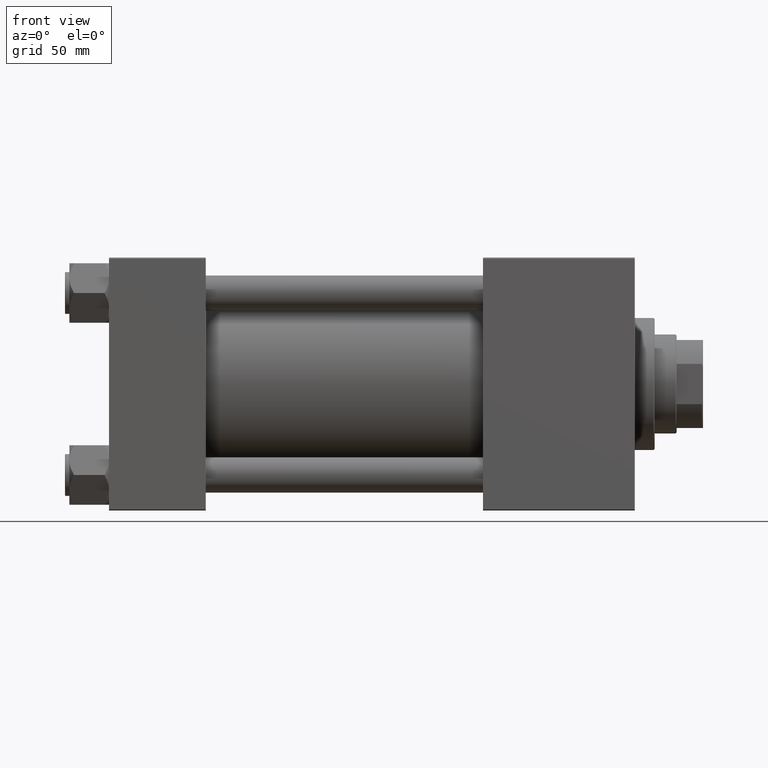
[diagram: clean part render]
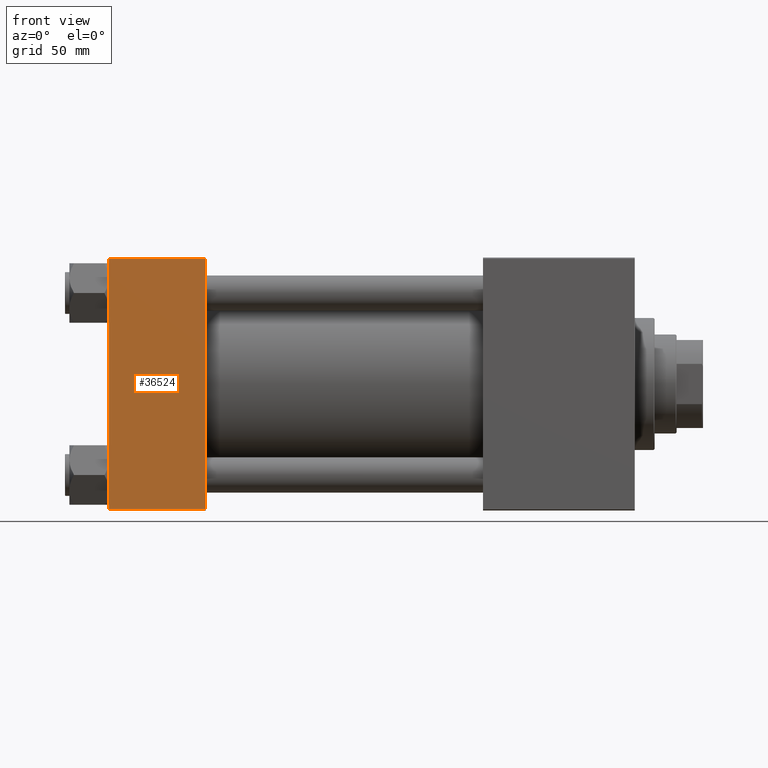
[diagram: same view with one face highlighted and labeled with its STEP entity id]
A machine part, front view. The second image highlights one B-rep face of the part: STEP entity #36524.
In plain terms, the highlighted planar face has unit normal (0, 1, 0).
Its self-contained STEP definition (entity closure, byte-faithful):
#619 = DIRECTION ( 'NONE',  ( 0.000000000000000000, 6.033820786006285224E-17, -1.000000000000000000 ) ) ;
#1130 = CARTESIAN_POINT ( 'NONE',  ( 44.00000000000000000, -57.50000000000000000, 57.49999999999999289 ) ) ;
#1693 = VERTEX_POINT ( 'NONE', #4170 ) ;
#2045 = DIRECTION ( 'NONE',  ( 0.000000000000000000, 6.033820786006285224E-17, -1.000000000000000000 ) ) ;
#2675 = LINE ( 'NONE', #33905, #12857 ) ;
#2834 = EDGE_CURVE ( 'NONE', #16030, #1693, #2675, .T. ) ;
#3592 = DIRECTION ( 'NONE',  ( 0.000000000000000000, -6.033820786006285224E-17, 1.000000000000000000 ) ) ;
#3887 = AXIS2_PLACEMENT_3D ( 'NONE', #1130, #12910, #3592 ) ;
#4170 = CARTESIAN_POINT ( 'NONE',  ( 44.00000000000000000, -57.49999999999999289, -57.00000000000003553 ) ) ;
#4978 = FACE_OUTER_BOUND ( 'NONE', #31458, .T. ) ;
#5907 = LINE ( 'NONE', #35183, #28947 ) ;
#8634 = CARTESIAN_POINT ( 'NONE',  ( 44.00000000000000000, -57.50000000000000000, 56.99999999999997868 ) ) ;
#10715 = VERTEX_POINT ( 'NONE', #31421 ) ;
#12857 = VECTOR ( 'NONE', #49795, 1000.000000000000000 ) ;
#12910 = DIRECTION ( 'NONE',  ( -0.000000000000000000, 1.000000000000000000, 6.033820786006285224E-17 ) ) ;
#14134 = ORIENTED_EDGE ( 'NONE', *, *, #43532, .T. ) ;
#16030 = VERTEX_POINT ( 'NONE', #16062 ) ;
#16062 = CARTESIAN_POINT ( 'NONE',  ( 0.000000000000000000, -57.49999999999999289, -57.00000000000003553 ) ) ;
#16660 = ORIENTED_EDGE ( 'NONE', *, *, #2834, .T. ) ;
#16898 = ORIENTED_EDGE ( 'NONE', *, *, #48048, .T. ) ;
#18145 = LINE ( 'NONE', #29187, #38065 ) ;
#18714 = CARTESIAN_POINT ( 'NONE',  ( 44.00000000000000000, -57.50000000000000000, 56.99999999999997868 ) ) ;
#20581 = PLANE ( 'NONE',  #3887 ) ;
#28242 = VECTOR ( 'NONE', #35033, 1000.000000000000000 ) ;
#28947 = VECTOR ( 'NONE', #619, 1000.000000000000000 ) ;
#29187 = CARTESIAN_POINT ( 'NONE',  ( 44.00000000000000000, -57.50000000000000000, 57.49999999999999289 ) ) ;
#30631 = EDGE_CURVE ( 'NONE', #37805, #1693, #18145, .T. ) ;
#31421 = CARTESIAN_POINT ( 'NONE',  ( 0.000000000000000000, -57.50000000000000000, 56.99999999999997868 ) ) ;
#31458 = EDGE_LOOP ( 'NONE', ( #14134, #16660, #44387, #16898 ) ) ;
#33905 = CARTESIAN_POINT ( 'NONE',  ( 44.00000000000000000, -57.49999999999999289, -57.00000000000003553 ) ) ;
#35033 = DIRECTION ( 'NONE',  ( -1.000000000000000000, 0.000000000000000000, 0.000000000000000000 ) ) ;
#35183 = CARTESIAN_POINT ( 'NONE',  ( 0.000000000000000000, -57.50000000000000000, 57.49999999999999289 ) ) ;
#36524 = ADVANCED_FACE ( 'NONE', ( #4978 ), #20581, .F. ) ;
#37805 = VERTEX_POINT ( 'NONE', #18714 ) ;
#38065 = VECTOR ( 'NONE', #2045, 1000.000000000000000 ) ;
#39382 = LINE ( 'NONE', #8634, #28242 ) ;
#43532 = EDGE_CURVE ( 'NONE', #10715, #16030, #5907, .T. ) ;
#44387 = ORIENTED_EDGE ( 'NONE', *, *, #30631, .F. ) ;
#48048 = EDGE_CURVE ( 'NONE', #37805, #10715, #39382, .T. ) ;
#49795 = DIRECTION ( 'NONE',  ( 1.000000000000000000, 0.000000000000000000, 0.000000000000000000 ) ) ;